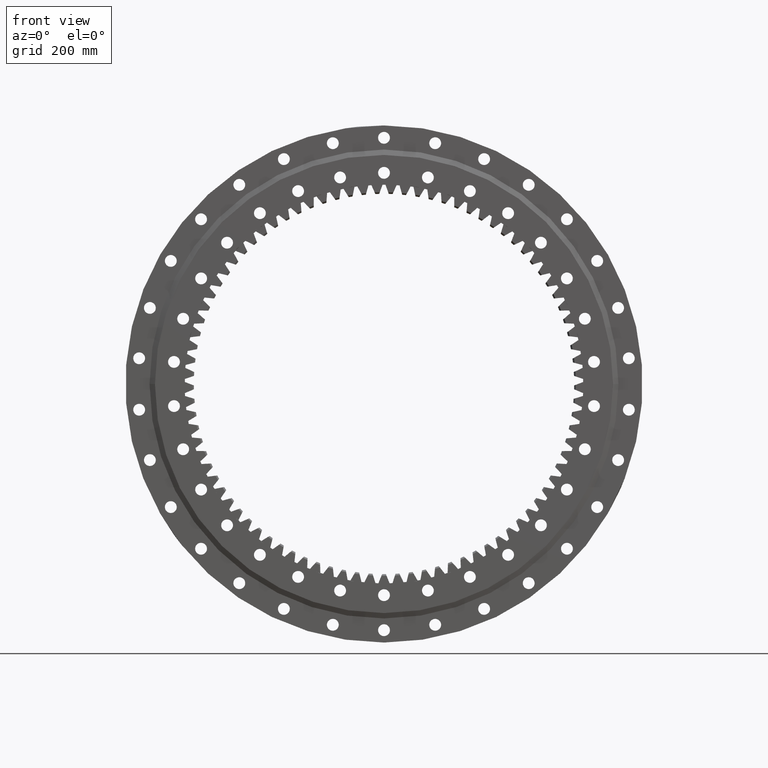
[diagram: clean part render]
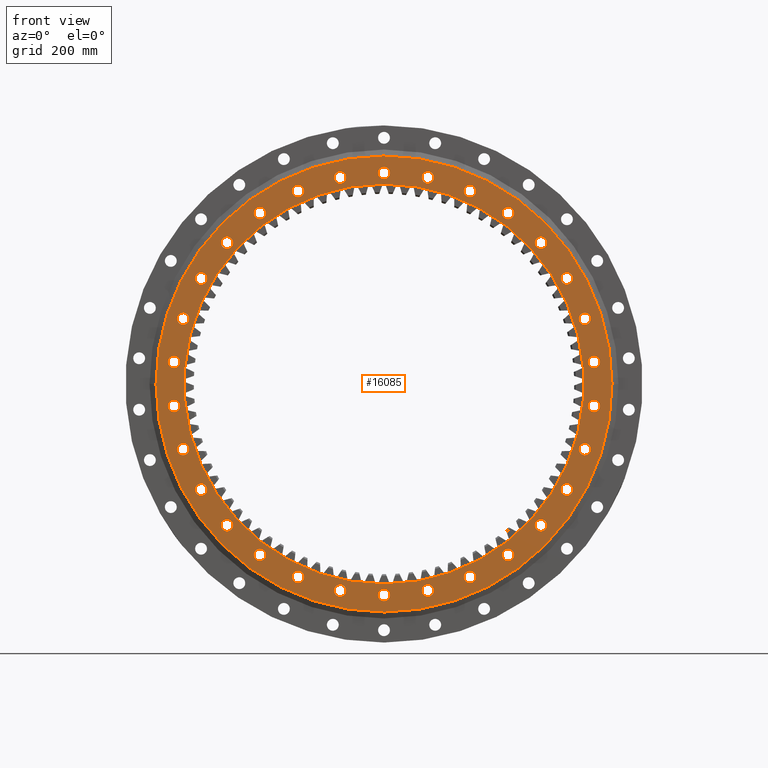
[diagram: same view with one face highlighted and labeled with its STEP entity id]
A machine part, front view. The second image highlights one B-rep face of the part: STEP entity #16085.
In plain terms, the highlighted planar face has unit normal (0, 1, -0).
Its self-contained STEP definition (entity closure, byte-faithful):
#42 = DIRECTION ( 'NONE',  ( -7.914688832368751900E-017, -1.000000000000000000, 6.617654413443253200E-017 ) ) ;
#182 = EDGE_CURVE ( 'NONE', #19157, #21866, #11584, .T. ) ;
#252 = CARTESIAN_POINT ( 'NONE',  ( 230.4118188986453200, -37.49999999999997200, 328.1346617949824300 ) ) ;
#288 = CARTESIAN_POINT ( 'NONE',  ( -81.50138280055892900, -37.49999999999998600, -383.4338594876524000 ) ) ;
#346 = FACE_BOUND ( 'NONE', #6698, .T. ) ;
#387 = EDGE_CURVE ( 'NONE', #7095, #25311, #18420, .T. ) ;
#444 = CIRCLE ( 'NONE', #19540, 10.99999999999997700 ) ;
#638 = CARTESIAN_POINT ( 'NONE',  ( 389.8525829843636600, -37.50000000000000000, -29.97515760091599200 ) ) ;
#661 = ORIENTED_EDGE ( 'NONE', *, *, #25674, .T. ) ;
#663 = CIRCLE ( 'NONE', #22200, 10.99999999999997900 ) ;
#708 = CARTESIAN_POINT ( 'NONE',  ( 81.50138280055632800, -37.49999999999995000, 383.4338594876529700 ) ) ;
#771 = EDGE_CURVE ( 'NONE', #816, #19096, #5057, .T. ) ;
#811 = ORIENTED_EDGE ( 'NONE', *, *, #23841, .T. ) ;
#816 = VERTEX_POINT ( 'NONE', #18573 ) ;
#901 = CARTESIAN_POINT ( 'NONE',  ( 291.3127715871352700, -37.49999999999996400, 262.2991976926761000 ) ) ;
#969 = FACE_BOUND ( 'NONE', #7936, .T. ) ;
#990 = CARTESIAN_POINT ( 'NONE',  ( -372.8141543877007400, -37.49999999999992900, 121.1346617949779400 ) ) ;
#1037 = CARTESIAN_POINT ( 'NONE',  ( 339.4819582834975900, -37.49999999999997900, 185.0000000000041200 ) ) ;
#1100 = EDGE_CURVE ( 'NONE', #16632, #5794, #1576, .T. ) ;
#1105 = EDGE_LOOP ( 'NONE', ( #21641, #10911 ) ) ;
#1153 = CIRCLE ( 'NONE', #15257, 423.2499999999999400 ) ;
#1392 = EDGE_LOOP ( 'NONE', ( #9373, #19290 ) ) ;
#1450 = CARTESIAN_POINT ( 'NONE',  ( -5.642730522889870800E-012, -37.49999999999994300, 381.0000000000000600 ) ) ;
#1456 = VERTEX_POINT ( 'NONE', #12157 ) ;
#1515 = DIRECTION ( 'NONE',  ( 0.9510565162951518700, 0.0000000000000000000, -0.3090169943749524500 ) ) ;
#1526 = CARTESIAN_POINT ( 'NONE',  ( 389.8525829843627500, -37.49999999999999300, 40.97515760092456100 ) ) ;
#1576 = CIRCLE ( 'NONE', #2342, 10.99999999999997500 ) ;
#1578 = FACE_BOUND ( 'NONE', #20775, .T. ) ;
#1590 = DIRECTION ( 'NONE',  ( 5.551115123123625700E-017, 0.0000000000000000000, 1.000000000000000000 ) ) ;
#1608 = VERTEX_POINT ( 'NONE', #2346 ) ;
#1845 = CARTESIAN_POINT ( 'NONE',  ( 339.4819582835019700, -37.50000000000001400, -184.9999999999967600 ) ) ;
#1950 = DIRECTION ( 'NONE',  ( -0.4067366430757881100, 0.0000000000000000000, 0.9135454576426063100 ) ) ;
#1957 = DIRECTION ( 'NONE',  ( -7.914688832368751900E-017, -1.000000000000000000, 6.617654413443253200E-017 ) ) ;
#1987 = ORIENTED_EDGE ( 'NONE', *, *, #387, .F. ) ;
#2026 = EDGE_LOOP ( 'NONE', ( #22293, #20347 ) ) ;
#2078 = ORIENTED_EDGE ( 'NONE', *, *, #7722, .F. ) ;
#2149 = CARTESIAN_POINT ( 'NONE',  ( -389.8525829843629800, -37.49999999999994300, -51.97515760092189700 ) ) ;
#2217 = FACE_BOUND ( 'NONE', #25259, .T. ) ;
#2248 = VERTEX_POINT ( 'NONE', #12774 ) ;
#2277 = DIRECTION ( 'NONE',  ( -0.2079116908177672800, 0.0000000000000000000, -0.9781476007338040200 ) ) ;
#2335 = CIRCLE ( 'NONE', #20297, 10.99999999999998000 ) ;
#2342 = AXIS2_PLACEMENT_3D ( 'NONE', #7269, #3453, #17328 ) ;
#2346 = CARTESIAN_POINT ( 'NONE',  ( -372.8141543876996000, -37.49999999999995000, -132.1346617949811600 ) ) ;
#2348 = DIRECTION ( 'NONE',  ( 0.7431448254773925800, 0.0000000000000000000, -0.6691306063588601200 ) ) ;
#2491 = DIRECTION ( 'NONE',  ( -7.914688832368751900E-017, -1.000000000000000000, 6.617654413443253200E-017 ) ) ;
#2582 = DIRECTION ( 'NONE',  ( -7.914688832368751900E-017, -1.000000000000000000, 6.617654413443253200E-017 ) ) ;
#2662 = EDGE_LOOP ( 'NONE', ( #15701, #24950 ) ) ;
#2684 = ORIENTED_EDGE ( 'NONE', *, *, #11899, .F. ) ;
#2703 = CARTESIAN_POINT ( 'NONE',  ( -339.4819582835005500, -37.49999999999992200, 195.9999999999990900 ) ) ;
#2716 = DIRECTION ( 'NONE',  ( 0.2079116908177589800, 0.0000000000000000000, 0.9781476007338056900 ) ) ;
#2734 = DIRECTION ( 'NONE',  ( -0.9945218953682722900, 0.0000000000000000000, 0.1045284632676639200 ) ) ;
#2864 = CARTESIAN_POINT ( 'NONE',  ( 2.900087676340490100E-012, -37.49999999999999300, -392.0000000000000000 ) ) ;
#2880 = CARTESIAN_POINT ( 'NONE',  ( 372.8141543877014800, -37.50000000000000700, -110.1346617949756000 ) ) ;
#2945 = DIRECTION ( 'NONE',  ( -5.551115123125783900E-017, -7.481287227932321400E-017, -1.000000000000000000 ) ) ;
#2985 = EDGE_LOOP ( 'NONE', ( #7611, #13466 ) ) ;
#3042 = CARTESIAN_POINT ( 'NONE',  ( -339.4819582835005500, -37.49999999999992200, 206.9999999999990600 ) ) ;
#3046 = CARTESIAN_POINT ( 'NONE',  ( -230.4118188986475400, -37.49999999999996400, -317.1346617949808400 ) ) ;
#3054 = AXIS2_PLACEMENT_3D ( 'NONE', #25301, #13416, #1515 ) ;
#3080 = ORIENTED_EDGE ( 'NONE', *, *, #19168, .F. ) ;
#3085 = AXIS2_PLACEMENT_3D ( 'NONE', #21630, #9741, #23649 ) ;
#3163 = CARTESIAN_POINT ( 'NONE',  ( 159.4407640857166900, -37.50000000000000700, -347.1098193958982800 ) ) ;
#3195 = EDGE_CURVE ( 'NONE', #22843, #24779, #24084, .T. ) ;
#3196 = AXIS2_PLACEMENT_3D ( 'NONE', #14400, #2491, #16382 ) ;
#3317 = CARTESIAN_POINT ( 'NONE',  ( 291.3127715871410100, -37.50000000000000700, -262.2991976926696800 ) ) ;
#3453 = DIRECTION ( 'NONE',  ( -7.914688832368751900E-017, -1.000000000000000000, 6.617654413443253200E-017 ) ) ;
#3464 = ORIENTED_EDGE ( 'NONE', *, *, #14143, .F. ) ;
#3468 = CIRCLE ( 'NONE', #22239, 10.99999999999997500 ) ;
#3470 = FACE_BOUND ( 'NONE', #2662, .T. ) ;
#3531 = DIRECTION ( 'NONE',  ( 0.9945218953682736200, 0.0000000000000000000, 0.1045284632676507900 ) ) ;
#3606 = DIRECTION ( 'NONE',  ( -7.914688832368751900E-017, -1.000000000000000000, 6.617654413443253200E-017 ) ) ;
#3649 = CIRCLE ( 'NONE', #18307, 10.99999999999999800 ) ;
#3684 = VERTEX_POINT ( 'NONE', #6448 ) ;
#3688 = VERTEX_POINT ( 'NONE', #16776 ) ;
#3822 = VERTEX_POINT ( 'NONE', #1845 ) ;
#3943 = AXIS2_PLACEMENT_3D ( 'NONE', #9127, #23020, #11135 ) ;
#3948 = CARTESIAN_POINT ( 'NONE',  ( 339.4819582834975900, -37.49999999999997900, 196.0000000000041200 ) ) ;
#3951 = CARTESIAN_POINT ( 'NONE',  ( -159.4407640857143900, -37.49999999999992900, 358.1098193958993600 ) ) ;
#4032 = DIRECTION ( 'NONE',  ( -7.914688832368751900E-017, -1.000000000000000000, 6.617654413443253200E-017 ) ) ;
#4087 = CARTESIAN_POINT ( 'NONE',  ( -159.4407640857143900, -37.49999999999992900, 347.1098193958994200 ) ) ;
#4091 = CIRCLE ( 'NONE', #3085, 10.99999999999995900 ) ;
#4150 = VERTEX_POINT ( 'NONE', #5363 ) ;
#4169 = ORIENTED_EDGE ( 'NONE', *, *, #24289, .F. ) ;
#4213 = CARTESIAN_POINT ( 'NONE',  ( -389.8525829843629800, -37.49999999999994300, -29.97515760092193200 ) ) ;
#4223 = DIRECTION ( 'NONE',  ( -7.914688832368751900E-017, -1.000000000000000000, 6.617654413443253200E-017 ) ) ;
#4254 = ORIENTED_EDGE ( 'NONE', *, *, #9830, .F. ) ;
#4272 = CARTESIAN_POINT ( 'NONE',  ( -230.4118188986501500, -37.49999999999992900, 317.1346617949788500 ) ) ;
#4323 = EDGE_CURVE ( 'NONE', #24322, #17646, #12585, .T. ) ;
#4330 = CARTESIAN_POINT ( 'NONE',  ( -81.50138280056226800, -37.49999999999993600, 383.4338594876516600 ) ) ;
#4336 = VERTEX_POINT ( 'NONE', #8570 ) ;
#4385 = EDGE_CURVE ( 'NONE', #6364, #7457, #6061, .T. ) ;
#4390 = CARTESIAN_POINT ( 'NONE',  ( -291.3127715871370400, -37.49999999999996400, -262.2991976926741700 ) ) ;
#4403 = FACE_BOUND ( 'NONE', #23584, .T. ) ;
#4404 = ORIENTED_EDGE ( 'NONE', *, *, #5306, .F. ) ;
#4407 = CARTESIAN_POINT ( 'NONE',  ( -81.50138280055892900, -37.49999999999998600, -372.4338594876524600 ) ) ;
#4447 = CARTESIAN_POINT ( 'NONE',  ( -372.8141543876996000, -37.49999999999995000, -121.1346617949811700 ) ) ;
#4470 = VERTEX_POINT ( 'NONE', #21446 ) ;
#4552 = EDGE_CURVE ( 'NONE', #11053, #19707, #12882, .T. ) ;
#4593 = AXIS2_PLACEMENT_3D ( 'NONE', #4950, #18823, #6923 ) ;
#4599 = CARTESIAN_POINT ( 'NONE',  ( 230.4118188986453200, -37.49999999999997200, 317.1346617949824300 ) ) ;
#4608 = DIRECTION ( 'NONE',  ( -7.914688832368751900E-017, -1.000000000000000000, 6.617654413443253200E-017 ) ) ;
#4677 = EDGE_CURVE ( 'NONE', #12948, #7034, #444, .T. ) ;
#4723 = DIRECTION ( 'NONE',  ( -0.8660254037844337100, 0.0000000000000000000, 0.5000000000000086600 ) ) ;
#4826 = DIRECTION ( 'NONE',  ( -7.914688832368751900E-017, -1.000000000000000000, 6.617654413443253200E-017 ) ) ;
#4895 = EDGE_CURVE ( 'NONE', #2248, #4336, #11303, .T. ) ;
#4900 = CIRCLE ( 'NONE', #18816, 10.99999999999996100 ) ;
#4950 = CARTESIAN_POINT ( 'NONE',  ( -389.8525829843629800, -37.49999999999994300, -40.97515760092191800 ) ) ;
#4969 = CARTESIAN_POINT ( 'NONE',  ( -2.968008312138279100E-015, -37.49999999999996400, 3.504269618579862700E-015 ) ) ;
#4974 = EDGE_CURVE ( 'NONE', #19707, #11053, #10060, .T. ) ;
#5031 = FACE_BOUND ( 'NONE', #8455, .T. ) ;
#5057 = CIRCLE ( 'NONE', #17987, 10.99999999999998900 ) ;
#5059 = DIRECTION ( 'NONE',  ( -7.914688832368751900E-017, -1.000000000000000000, 6.617654413443253200E-017 ) ) ;
#5060 = DIRECTION ( 'NONE',  ( -0.5877852522924800200, 0.0000000000000000000, -0.8090169943749423400 ) ) ;
#5075 = EDGE_CURVE ( 'NONE', #17259, #3684, #12861, .T. ) ;
#5078 = CIRCLE ( 'NONE', #20210, 10.99999999999999800 ) ;
#5102 = CARTESIAN_POINT ( 'NONE',  ( -5.642734439954239900E-012, -37.49999999999994300, 402.9999999999999400 ) ) ;
#5204 = EDGE_LOOP ( 'NONE', ( #15682, #6904 ) ) ;
#5232 = DIRECTION ( 'NONE',  ( 7.914688832368751900E-017, 1.000000000000000000, -6.617654413443253200E-017 ) ) ;
#5306 = EDGE_CURVE ( 'NONE', #7335, #15599, #13790, .T. ) ;
#5363 = CARTESIAN_POINT ( 'NONE',  ( 389.8525829843627500, -37.49999999999999300, 51.97515760092454000 ) ) ;
#5366 = CIRCLE ( 'NONE', #5935, 10.99999999999999300 ) ;
#5376 = CARTESIAN_POINT ( 'NONE',  ( 389.8525829843636600, -37.50000000000000000, -40.97515760091597800 ) ) ;
#5490 = AXIS2_PLACEMENT_3D ( 'NONE', #14495, #2582, #16475 ) ;
#5577 = CARTESIAN_POINT ( 'NONE',  ( -159.4407640857112700, -37.49999999999997900, -347.1098193959007300 ) ) ;
#5634 = CARTESIAN_POINT ( 'NONE',  ( -159.4407640857112700, -37.49999999999997900, -369.1098193959006700 ) ) ;
#5642 = FACE_BOUND ( 'NONE', #12249, .T. ) ;
#5656 = AXIS2_PLACEMENT_3D ( 'NONE', #19745, #7847, #21732 ) ;
#5716 = EDGE_LOOP ( 'NONE', ( #24106, #661 ) ) ;
#5726 = EDGE_CURVE ( 'NONE', #11041, #22179, #22773, .T. ) ;
#5729 = VERTEX_POINT ( 'NONE', #9092 ) ;
#5777 = CARTESIAN_POINT ( 'NONE',  ( -81.50138280055892900, -37.49999999999998600, -383.4338594876524000 ) ) ;
#5787 = ORIENTED_EDGE ( 'NONE', *, *, #6781, .F. ) ;
#5794 = VERTEX_POINT ( 'NONE', #5577 ) ;
#5800 = EDGE_CURVE ( 'NONE', #14459, #6392, #7548, .T. ) ;
#5827 = EDGE_CURVE ( 'NONE', #11426, #6340, #5078, .T. ) ;
#5831 = CARTESIAN_POINT ( 'NONE',  ( 2.903270572874554100E-012, -37.49999999999999300, -381.0000000000000600 ) ) ;
#5887 = VERTEX_POINT ( 'NONE', #252 ) ;
#5935 = AXIS2_PLACEMENT_3D ( 'NONE', #3317, #17200, #7307 ) ;
#5945 = EDGE_LOOP ( 'NONE', ( #7436, #5787 ) ) ;
#5948 = CIRCLE ( 'NONE', #6894, 10.99999999999997500 ) ;
#5949 = DIRECTION ( 'NONE',  ( 0.8660254037844393700, 0.0000000000000000000, 0.4999999999999987800 ) ) ;
#5966 = ORIENTED_EDGE ( 'NONE', *, *, #4974, .F. ) ;
#6009 = VERTEX_POINT ( 'NONE', #21548 ) ;
#6061 = CIRCLE ( 'NONE', #13377, 10.99999999999995400 ) ;
#6068 = EDGE_CURVE ( 'NONE', #4336, #2248, #5366, .T. ) ;
#6255 = DIRECTION ( 'NONE',  ( -0.5877852522924637000, 0.0000000000000000000, 0.8090169943749543300 ) ) ;
#6258 = FACE_BOUND ( 'NONE', #6855, .T. ) ;
#6281 = CARTESIAN_POINT ( 'NONE',  ( -372.8141543877007400, -37.49999999999992900, 110.1346617949779700 ) ) ;
#6314 = DIRECTION ( 'NONE',  ( -0.2079116908177469400, 0.0000000000000000000, 0.9781476007338082400 ) ) ;
#6340 = VERTEX_POINT ( 'NONE', #4087 ) ;
#6364 = VERTEX_POINT ( 'NONE', #20261 ) ;
#6368 = EDGE_CURVE ( 'NONE', #16248, #13263, #16843, .T. ) ;
#6373 = DIRECTION ( 'NONE',  ( -0.7431448254773999100, 0.0000000000000000000, -0.6691306063588520200 ) ) ;
#6392 = VERTEX_POINT ( 'NONE', #4407 ) ;
#6436 = DIRECTION ( 'NONE',  ( -0.9510565162951565300, 0.0000000000000000000, -0.3090169943749384600 ) ) ;
#6448 = CARTESIAN_POINT ( 'NONE',  ( 372.8141543876987500, -37.49999999999998600, 110.1346617949838100 ) ) ;
#6478 = CIRCLE ( 'NONE', #21336, 10.99999999999995400 ) ;
#6480 = EDGE_LOOP ( 'NONE', ( #14378, #22193 ) ) ;
#6492 = AXIS2_PLACEMENT_3D ( 'NONE', #6548, #20418, #8541 ) ;
#6547 = CIRCLE ( 'NONE', #4593, 11.00000000000000900 ) ;
#6548 = CARTESIAN_POINT ( 'NONE',  ( -372.8141543876996000, -37.49999999999995000, -121.1346617949811700 ) ) ;
#6577 = DIRECTION ( 'NONE',  ( 0.5877852522924726900, 0.0000000000000000000, 0.8090169943749477800 ) ) ;
#6583 = CIRCLE ( 'NONE', #16881, 10.99999999999998900 ) ;
#6590 = DIRECTION ( 'NONE',  ( -7.914688832368751900E-017, -1.000000000000000000, 6.617654413443253200E-017 ) ) ;
#6698 = EDGE_LOOP ( 'NONE', ( #21554, #4404 ) ) ;
#6738 = AXIS2_PLACEMENT_3D ( 'NONE', #1526, #15423, #3531 ) ;
#6781 = EDGE_CURVE ( 'NONE', #14345, #10984, #3468, .T. ) ;
#6792 = DIRECTION ( 'NONE',  ( 0.9510565162951518700, 0.0000000000000000000, -0.3090169943749524500 ) ) ;
#6817 = EDGE_CURVE ( 'NONE', #9780, #6009, #18696, .T. ) ;
#6850 = CARTESIAN_POINT ( 'NONE',  ( 230.4118188986523700, -37.50000000000000700, -328.1346617949772100 ) ) ;
#6855 = EDGE_LOOP ( 'NONE', ( #4254, #11077 ) ) ;
#6884 = FACE_BOUND ( 'NONE', #8532, .T. ) ;
#6894 = AXIS2_PLACEMENT_3D ( 'NONE', #9031, #22921, #11034 ) ;
#6904 = ORIENTED_EDGE ( 'NONE', *, *, #20466, .F. ) ;
#6910 = ORIENTED_EDGE ( 'NONE', *, *, #19960, .F. ) ;
#6923 = DIRECTION ( 'NONE',  ( -0.9945218953682744000, 0.0000000000000000000, -0.1045284632676434200 ) ) ;
#6930 = CARTESIAN_POINT ( 'NONE',  ( 1.782449601546759800E-014, -37.49999999999993600, 371.0000000000000000 ) ) ;
#6933 = VERTEX_POINT ( 'NONE', #24747 ) ;
#6949 = AXIS2_PLACEMENT_3D ( 'NONE', #20823, #8938, #22824 ) ;
#6986 = ORIENTED_EDGE ( 'NONE', *, *, #21777, .F. ) ;
#7030 = CARTESIAN_POINT ( 'NONE',  ( -230.4118188986501500, -37.49999999999992900, 328.1346617949788000 ) ) ;
#7034 = VERTEX_POINT ( 'NONE', #21426 ) ;
#7066 = ORIENTED_EDGE ( 'NONE', *, *, #17684, .F. ) ;
#7086 = CARTESIAN_POINT ( 'NONE',  ( -291.3127715871370400, -37.49999999999996400, -251.2991976926742300 ) ) ;
#7095 = VERTEX_POINT ( 'NONE', #23702 ) ;
#7137 = ORIENTED_EDGE ( 'NONE', *, *, #4552, .F. ) ;
#7192 = EDGE_CURVE ( 'NONE', #3684, #17259, #17057, .T. ) ;
#7269 = CARTESIAN_POINT ( 'NONE',  ( -159.4407640857112700, -37.49999999999997900, -358.1098193959006700 ) ) ;
#7307 = DIRECTION ( 'NONE',  ( 0.7431448254773925800, 0.0000000000000000000, -0.6691306063588601200 ) ) ;
#7335 = VERTEX_POINT ( 'NONE', #6850 ) ;
#7360 = DIRECTION ( 'NONE',  ( 0.9945218953682729600, 0.0000000000000000000, -0.1045284632676570400 ) ) ;
#7436 = ORIENTED_EDGE ( 'NONE', *, *, #12781, .F. ) ;
#7452 = CARTESIAN_POINT ( 'NONE',  ( 339.4819582834975900, -37.49999999999997900, 196.0000000000041200 ) ) ;
#7457 = VERTEX_POINT ( 'NONE', #5831 ) ;
#7517 = CIRCLE ( 'NONE', #24026, 10.99999999999997700 ) ;
#7548 = CIRCLE ( 'NONE', #16226, 10.99999999999996600 ) ;
#7604 = CIRCLE ( 'NONE', #19317, 11.00000000000000400 ) ;
#7611 = ORIENTED_EDGE ( 'NONE', *, *, #17336, .F. ) ;
#7662 = DIRECTION ( 'NONE',  ( -7.914688832368751900E-017, -1.000000000000000000, 6.617654413443253200E-017 ) ) ;
#7707 = CIRCLE ( 'NONE', #12239, 10.99999999999995900 ) ;
#7710 = CIRCLE ( 'NONE', #5656, 10.99999999999998600 ) ;
#7721 = EDGE_LOOP ( 'NONE', ( #5966, #7137 ) ) ;
#7722 = EDGE_CURVE ( 'NONE', #7457, #6364, #6478, .T. ) ;
#7732 = EDGE_CURVE ( 'NONE', #19539, #25798, #11753, .T. ) ;
#7738 = DIRECTION ( 'NONE',  ( -7.914688832368751900E-017, -1.000000000000000000, 6.617654413443253200E-017 ) ) ;
#7801 = VERTEX_POINT ( 'NONE', #13091 ) ;
#7824 = CARTESIAN_POINT ( 'NONE',  ( 230.4118188986523700, -37.50000000000000700, -306.1346617949772600 ) ) ;
#7826 = AXIS2_PLACEMENT_3D ( 'NONE', #10599, #6590, #20467 ) ;
#7845 = CARTESIAN_POINT ( 'NONE',  ( 372.8141543876987500, -37.49999999999998600, 132.1346617949837700 ) ) ;
#7847 = DIRECTION ( 'NONE',  ( -7.914688832368751900E-017, -1.000000000000000000, 6.617654413443253200E-017 ) ) ;
#7852 = CARTESIAN_POINT ( 'NONE',  ( -389.8525829843629800, -37.49999999999994300, -40.97515760092191800 ) ) ;
#7936 = EDGE_LOOP ( 'NONE', ( #23896, #11784 ) ) ;
#7945 = DIRECTION ( 'NONE',  ( -7.914688832368751900E-017, -1.000000000000000000, 6.617654413443251900E-017 ) ) ;
#8047 = VERTEX_POINT ( 'NONE', #16461 ) ;
#8100 = DIRECTION ( 'NONE',  ( -7.914688832368753200E-017, -1.000000000000000000, 6.617654413443253200E-017 ) ) ;
#8103 = EDGE_CURVE ( 'NONE', #17646, #24322, #20741, .T. ) ;
#8217 = EDGE_CURVE ( 'NONE', #3688, #19708, #13607, .T. ) ;
#8249 = AXIS2_PLACEMENT_3D ( 'NONE', #11099, #24978, #13089 ) ;
#8260 = EDGE_CURVE ( 'NONE', #15263, #11106, #22912, .T. ) ;
#8339 = ORIENTED_EDGE ( 'NONE', *, *, #23480, .F. ) ;
#8397 = AXIS2_PLACEMENT_3D ( 'NONE', #12383, #24265, #10397 ) ;
#8440 = DIRECTION ( 'NONE',  ( -7.914688832368751900E-017, -1.000000000000000000, 6.617654413443253200E-017 ) ) ;
#8455 = EDGE_LOOP ( 'NONE', ( #4169, #15986 ) ) ;
#8470 = ORIENTED_EDGE ( 'NONE', *, *, #5075, .F. ) ;
#8532 = EDGE_LOOP ( 'NONE', ( #13272, #22498 ) ) ;
#8541 = DIRECTION ( 'NONE',  ( -0.9510565162951565300, 0.0000000000000000000, -0.3090169943749384600 ) ) ;
#8569 = ORIENTED_EDGE ( 'NONE', *, *, #10926, .F. ) ;
#8570 = CARTESIAN_POINT ( 'NONE',  ( 291.3127715871410100, -37.50000000000000700, -251.2991976926697400 ) ) ;
#8665 = ORIENTED_EDGE ( 'NONE', *, *, #18285, .F. ) ;
#8701 = DIRECTION ( 'NONE',  ( 0.9510565162951547500, 0.0000000000000000000, 0.3090169943749441800 ) ) ;
#8717 = AXIS2_PLACEMENT_3D ( 'NONE', #24384, #11554, #13559 ) ;
#8746 = CARTESIAN_POINT ( 'NONE',  ( -230.4118188986501500, -37.49999999999992900, 306.1346617949789100 ) ) ;
#8755 = CIRCLE ( 'NONE', #9555, 10.99999999999997000 ) ;
#8782 = CARTESIAN_POINT ( 'NONE',  ( 372.8141543877014800, -37.50000000000000700, -121.1346617949755700 ) ) ;
#8938 = DIRECTION ( 'NONE',  ( -7.914688832368751900E-017, -1.000000000000000000, 6.617654413443253200E-017 ) ) ;
#8946 = ORIENTED_EDGE ( 'NONE', *, *, #10398, .F. ) ;
#9031 = CARTESIAN_POINT ( 'NONE',  ( -159.4407640857112700, -37.49999999999997900, -358.1098193959006700 ) ) ;
#9038 = FACE_OUTER_BOUND ( 'NONE', #5716, .T. ) ;
#9092 = CARTESIAN_POINT ( 'NONE',  ( 159.4407640857088800, -37.49999999999995700, 369.1098193959016400 ) ) ;
#9127 = CARTESIAN_POINT ( 'NONE',  ( 389.8525829843627500, -37.49999999999999300, 40.97515760092456100 ) ) ;
#9258 = VERTEX_POINT ( 'NONE', #18884 ) ;
#9338 = VERTEX_POINT ( 'NONE', #11306 ) ;
#9340 = CARTESIAN_POINT ( 'NONE',  ( 291.3127715871352700, -37.49999999999996400, 273.2991976926761000 ) ) ;
#9347 = CARTESIAN_POINT ( 'NONE',  ( 389.8525829843636600, -37.50000000000000000, -40.97515760091597800 ) ) ;
#9373 = ORIENTED_EDGE ( 'NONE', *, *, #4323, .F. ) ;
#9385 = CIRCLE ( 'NONE', #3054, 10.99999999999996300 ) ;
#9426 = ORIENTED_EDGE ( 'NONE', *, *, #7192, .F. ) ;
#9430 = DIRECTION ( 'NONE',  ( 0.8660254037844393700, 0.0000000000000000000, 0.4999999999999987800 ) ) ;
#9461 = CIRCLE ( 'NONE', #25376, 10.99999999999999100 ) ;
#9496 = DIRECTION ( 'NONE',  ( 0.2079116908177529600, 0.0000000000000000000, -0.9781476007338069100 ) ) ;
#9510 = CARTESIAN_POINT ( 'NONE',  ( 2.052708644649159900E-014, -37.49999999999993600, 423.2499999999999400 ) ) ;
#9523 = DIRECTION ( 'NONE',  ( -7.914688832368751900E-017, -1.000000000000000000, 6.617654413443253200E-017 ) ) ;
#9525 = CIRCLE ( 'NONE', #19942, 10.99999999999997500 ) ;
#9555 = AXIS2_PLACEMENT_3D ( 'NONE', #9347, #23261, #11356 ) ;
#9618 = DIRECTION ( 'NONE',  ( -7.914688832368751900E-017, -1.000000000000000000, 6.617654413443253200E-017 ) ) ;
#9651 = FACE_BOUND ( 'NONE', #1392, .T. ) ;
#9717 = AXIS2_PLACEMENT_3D ( 'NONE', #5376, #19255, #7360 ) ;
#9728 = EDGE_CURVE ( 'NONE', #20685, #9258, #22543, .T. ) ;
#9741 = DIRECTION ( 'NONE',  ( -7.914688832368753200E-017, -1.000000000000000000, 6.617654413443253200E-017 ) ) ;
#9780 = VERTEX_POINT ( 'NONE', #2880 ) ;
#9830 = EDGE_CURVE ( 'NONE', #7801, #1456, #9461, .T. ) ;
#9840 = VERTEX_POINT ( 'NONE', #1037 ) ;
#9929 = CARTESIAN_POINT ( 'NONE',  ( -7.810039029607876700E-014, -37.49999999999999300, -423.2499999999999400 ) ) ;
#9969 = ORIENTED_EDGE ( 'NONE', *, *, #182, .F. ) ;
#10060 = CIRCLE ( 'NONE', #20364, 10.99999999999995400 ) ;
#10079 = DIRECTION ( 'NONE',  ( -7.914688832368751900E-017, -1.000000000000000000, 6.617654413443251900E-017 ) ) ;
#10083 = ORIENTED_EDGE ( 'NONE', *, *, #10155, .F. ) ;
#10093 = ORIENTED_EDGE ( 'NONE', *, *, #9728, .F. ) ;
#10149 = EDGE_LOOP ( 'NONE', ( #24296, #19435 ) ) ;
#10155 = EDGE_CURVE ( 'NONE', #19717, #6933, #20368, .T. ) ;
#10198 = AXIS2_PLACEMENT_3D ( 'NONE', #4599, #18477, #6577 ) ;
#10228 = CIRCLE ( 'NONE', #21909, 10.99999999999995600 ) ;
#10230 = VERTEX_POINT ( 'NONE', #638 ) ;
#10253 = EDGE_LOOP ( 'NONE', ( #10093, #12378 ) ) ;
#10303 = FACE_BOUND ( 'NONE', #10149, .T. ) ;
#10397 = DIRECTION ( 'NONE',  ( 0.7431448254773951300, 0.0000000000000000000, 0.6691306063588573500 ) ) ;
#10398 = EDGE_CURVE ( 'NONE', #11984, #4150, #11982, .T. ) ;
#10444 = DIRECTION ( 'NONE',  ( -0.2079116908177469400, 0.0000000000000000000, 0.9781476007338082400 ) ) ;
#10476 = EDGE_LOOP ( 'NONE', ( #2684, #12220 ) ) ;
#10599 = CARTESIAN_POINT ( 'NONE',  ( -339.4819582834989000, -37.49999999999995700, -196.0000000000017300 ) ) ;
#10646 = DIRECTION ( 'NONE',  ( -7.914688832368751900E-017, -1.000000000000000000, 6.617654413443253200E-017 ) ) ;
#10725 = EDGE_CURVE ( 'NONE', #21866, #19157, #21574, .T. ) ;
#10740 = AXIS2_PLACEMENT_3D ( 'NONE', #901, #9618, #20724 ) ;
#10911 = ORIENTED_EDGE ( 'NONE', *, *, #25026, .F. ) ;
#10925 = FACE_BOUND ( 'NONE', #19210, .T. ) ;
#10926 = EDGE_CURVE ( 'NONE', #25311, #7095, #23305, .T. ) ;
#10977 = AXIS2_PLACEMENT_3D ( 'NONE', #11844, #25739, #13861 ) ;
#10984 = VERTEX_POINT ( 'NONE', #20985 ) ;
#11034 = DIRECTION ( 'NONE',  ( -0.4067366430758066500, 0.0000000000000000000, -0.9135454576425979800 ) ) ;
#11041 = VERTEX_POINT ( 'NONE', #11350 ) ;
#11053 = VERTEX_POINT ( 'NONE', #1450 ) ;
#11063 = AXIS2_PLACEMENT_3D ( 'NONE', #21962, #10079, #2348 ) ;
#11077 = ORIENTED_EDGE ( 'NONE', *, *, #21074, .F. ) ;
#11099 = CARTESIAN_POINT ( 'NONE',  ( -2.968008312138279100E-015, -37.49999999999996400, 1.635436641461305900E-015 ) ) ;
#11106 = VERTEX_POINT ( 'NONE', #11613 ) ;
#11109 = DIRECTION ( 'NONE',  ( -7.914688832368751900E-017, -1.000000000000000000, 6.617654413443253200E-017 ) ) ;
#11135 = DIRECTION ( 'NONE',  ( 0.9945218953682736200, 0.0000000000000000000, 0.1045284632676507900 ) ) ;
#11143 = CARTESIAN_POINT ( 'NONE',  ( 2.900087676340490100E-012, -37.49999999999999300, -392.0000000000000000 ) ) ;
#11162 = CARTESIAN_POINT ( 'NONE',  ( 389.8525829843636600, -37.50000000000000000, -51.97515760091595600 ) ) ;
#11303 = CIRCLE ( 'NONE', #11063, 10.99999999999999300 ) ;
#11306 = CARTESIAN_POINT ( 'NONE',  ( 339.4819582835019700, -37.50000000000001400, -206.9999999999967000 ) ) ;
#11350 = CARTESIAN_POINT ( 'NONE',  ( 2.052708644649159900E-014, -37.49999999999993600, 423.2499999999999400 ) ) ;
#11356 = DIRECTION ( 'NONE',  ( 0.9945218953682729600, 0.0000000000000000000, -0.1045284632676570400 ) ) ;
#11426 = VERTEX_POINT ( 'NONE', #20953 ) ;
#11431 = AXIS2_PLACEMENT_3D ( 'NONE', #4272, #18148, #6255 ) ;
#11450 = AXIS2_PLACEMENT_3D ( 'NONE', #288, #14200, #2277 ) ;
#11539 = FACE_BOUND ( 'NONE', #13692, .T. ) ;
#11554 = DIRECTION ( 'NONE',  ( -7.914688832368751900E-017, -1.000000000000000000, 6.617654413443253200E-017 ) ) ;
#11584 = CIRCLE ( 'NONE', #12310, 10.99999999999996600 ) ;
#11613 = CARTESIAN_POINT ( 'NONE',  ( -372.8141543877007400, -37.49999999999992900, 132.1346617949779400 ) ) ;
#11689 = EDGE_CURVE ( 'NONE', #15599, #7335, #10228, .T. ) ;
#11690 = ORIENTED_EDGE ( 'NONE', *, *, #6368, .F. ) ;
#11753 = CIRCLE ( 'NONE', #22689, 371.0000000000000000 ) ;
#11762 = DIRECTION ( 'NONE',  ( -0.2079116908177672800, 0.0000000000000000000, -0.9781476007338040200 ) ) ;
#11784 = ORIENTED_EDGE ( 'NONE', *, *, #1100, .F. ) ;
#11844 = CARTESIAN_POINT ( 'NONE',  ( -291.3127715871392000, -37.49999999999992200, 262.2991976926716700 ) ) ;
#11899 = EDGE_CURVE ( 'NONE', #19708, #3688, #16430, .T. ) ;
#11982 = CIRCLE ( 'NONE', #3943, 10.99999999999996300 ) ;
#11984 = VERTEX_POINT ( 'NONE', #21184 ) ;
#12009 = CIRCLE ( 'NONE', #13314, 10.99999999999998800 ) ;
#12149 = FACE_BOUND ( 'NONE', #6480, .T. ) ;
#12157 = CARTESIAN_POINT ( 'NONE',  ( -230.4118188986475400, -37.49999999999996400, -328.1346617949807900 ) ) ;
#12220 = ORIENTED_EDGE ( 'NONE', *, *, #8217, .F. ) ;
#12239 = AXIS2_PLACEMENT_3D ( 'NONE', #19985, #8100, #21976 ) ;
#12249 = EDGE_LOOP ( 'NONE', ( #8665, #12532 ) ) ;
#12310 = AXIS2_PLACEMENT_3D ( 'NONE', #17904, #23719, #21819 ) ;
#12378 = ORIENTED_EDGE ( 'NONE', *, *, #13160, .F. ) ;
#12383 = CARTESIAN_POINT ( 'NONE',  ( 291.3127715871352700, -37.49999999999996400, 262.2991976926761000 ) ) ;
#12532 = ORIENTED_EDGE ( 'NONE', *, *, #3195, .F. ) ;
#12585 = CIRCLE ( 'NONE', #10740, 10.99999999999995600 ) ;
#12694 = CARTESIAN_POINT ( 'NONE',  ( 372.8141543876987500, -37.49999999999998600, 121.1346617949837800 ) ) ;
#12774 = CARTESIAN_POINT ( 'NONE',  ( 291.3127715871410100, -37.50000000000000700, -273.2991976926696200 ) ) ;
#12781 = EDGE_CURVE ( 'NONE', #10984, #14345, #9525, .T. ) ;
#12861 = CIRCLE ( 'NONE', #24361, 10.99999999999998800 ) ;
#12882 = CIRCLE ( 'NONE', #24024, 10.99999999999995400 ) ;
#12896 = DIRECTION ( 'NONE',  ( -7.914688832368751900E-017, -1.000000000000000000, 6.617654413443253200E-017 ) ) ;
#12948 = VERTEX_POINT ( 'NONE', #13068 ) ;
#13013 = CIRCLE ( 'NONE', #24256, 10.99999999999998900 ) ;
#13068 = CARTESIAN_POINT ( 'NONE',  ( -389.8525829843633800, -37.49999999999993600, 51.97515760091850000 ) ) ;
#13089 = DIRECTION ( 'NONE',  ( 5.551115123125783900E-017, 6.557726075754026600E-017, 1.000000000000000000 ) ) ;
#13091 = CARTESIAN_POINT ( 'NONE',  ( -230.4118188986475400, -37.49999999999996400, -306.1346617949809000 ) ) ;
#13160 = EDGE_CURVE ( 'NONE', #9258, #20685, #7710, .T. ) ;
#13164 = EDGE_CURVE ( 'NONE', #24272, #16791, #22932, .T. ) ;
#13263 = VERTEX_POINT ( 'NONE', #4213 ) ;
#13272 = ORIENTED_EDGE ( 'NONE', *, *, #4677, .F. ) ;
#13314 = AXIS2_PLACEMENT_3D ( 'NONE', #22995, #11109, #24990 ) ;
#13350 = EDGE_CURVE ( 'NONE', #1608, #8047, #14556, .T. ) ;
#13377 = AXIS2_PLACEMENT_3D ( 'NONE', #11143, #15495, #25031 ) ;
#13389 = AXIS2_PLACEMENT_3D ( 'NONE', #17107, #5232, #19111 ) ;
#13416 = DIRECTION ( 'NONE',  ( -7.914688832368751900E-017, -1.000000000000000000, 6.617654413443253200E-017 ) ) ;
#13466 = ORIENTED_EDGE ( 'NONE', *, *, #5800, .F. ) ;
#13533 = DIRECTION ( 'NONE',  ( -5.551115123125783900E-017, -6.617654413443253200E-017, -1.000000000000000000 ) ) ;
#13559 = DIRECTION ( 'NONE',  ( 0.4067366430757942700, 0.0000000000000000000, -0.9135454576426036400 ) ) ;
#13575 = AXIS2_PLACEMENT_3D ( 'NONE', #7452, #21323, #9430 ) ;
#13607 = CIRCLE ( 'NONE', #21687, 11.00000000000000400 ) ;
#13692 = EDGE_LOOP ( 'NONE', ( #10083, #3464 ) ) ;
#13704 = DIRECTION ( 'NONE',  ( -0.9945218953682744000, 0.0000000000000000000, -0.1045284632676434200 ) ) ;
#13761 = AXIS2_PLACEMENT_3D ( 'NONE', #4390, #18275, #6373 ) ;
#13790 = CIRCLE ( 'NONE', #19882, 10.99999999999995600 ) ;
#13861 = DIRECTION ( 'NONE',  ( -0.7431448254773878000, 0.0000000000000000000, 0.6691306063588654500 ) ) ;
#13872 = DIRECTION ( 'NONE',  ( -7.914688832368751900E-017, -1.000000000000000000, 6.617654413443251900E-017 ) ) ;
#13975 = CARTESIAN_POINT ( 'NONE',  ( 81.50138280055632800, -37.49999999999995000, 383.4338594876529700 ) ) ;
#13979 = CIRCLE ( 'NONE', #11450, 10.99999999999996600 ) ;
#14058 = VERTEX_POINT ( 'NONE', #14951 ) ;
#14143 = EDGE_CURVE ( 'NONE', #6933, #19717, #4900, .T. ) ;
#14144 = CARTESIAN_POINT ( 'NONE',  ( -6.879917444649252500E-014, -37.49999999999999300, -371.0000000000000000 ) ) ;
#14155 = ORIENTED_EDGE ( 'NONE', *, *, #16038, .F. ) ;
#14200 = DIRECTION ( 'NONE',  ( -7.914688832368751900E-017, -1.000000000000000000, 6.617654413443253200E-017 ) ) ;
#14228 = CARTESIAN_POINT ( 'NONE',  ( -291.3127715871392000, -37.49999999999992200, 273.2991976926716100 ) ) ;
#14340 = FACE_BOUND ( 'NONE', #7721, .T. ) ;
#14345 = VERTEX_POINT ( 'NONE', #16136 ) ;
#14378 = ORIENTED_EDGE ( 'NONE', *, *, #15049, .F. ) ;
#14395 = CIRCLE ( 'NONE', #10198, 10.99999999999998800 ) ;
#14400 = CARTESIAN_POINT ( 'NONE',  ( -230.4118188986475400, -37.49999999999996400, -317.1346617949808400 ) ) ;
#14421 = CIRCLE ( 'NONE', #3196, 10.99999999999999100 ) ;
#14459 = VERTEX_POINT ( 'NONE', #24457 ) ;
#14495 = CARTESIAN_POINT ( 'NONE',  ( 159.4407640857166900, -37.50000000000000700, -358.1098193958982300 ) ) ;
#14556 = CIRCLE ( 'NONE', #6492, 10.99999999999996600 ) ;
#14624 = DIRECTION ( 'NONE',  ( -7.914688832368751900E-017, -1.000000000000000000, 6.617654413443253200E-017 ) ) ;
#14639 = DIRECTION ( 'NONE',  ( -7.914688832368751900E-017, -1.000000000000000000, 6.617654413443253200E-017 ) ) ;
#14699 = EDGE_CURVE ( 'NONE', #4150, #11984, #22438, .T. ) ;
#14755 = AXIS2_PLACEMENT_3D ( 'NONE', #2703, #16591, #4723 ) ;
#14760 = AXIS2_PLACEMENT_3D ( 'NONE', #7852, #1957, #13704 ) ;
#14765 = DIRECTION ( 'NONE',  ( -7.914688832368751900E-017, -1.000000000000000000, 6.617654413443253200E-017 ) ) ;
#14889 = EDGE_CURVE ( 'NONE', #7034, #12948, #7517, .T. ) ;
#14951 = CARTESIAN_POINT ( 'NONE',  ( 159.4407640857088800, -37.49999999999995700, 347.1098193959017500 ) ) ;
#14959 = FACE_BOUND ( 'NONE', #15649, .T. ) ;
#15027 = EDGE_CURVE ( 'NONE', #19096, #816, #6583, .T. ) ;
#15049 = EDGE_CURVE ( 'NONE', #11106, #15263, #663, .T. ) ;
#15102 = EDGE_CURVE ( 'NONE', #3822, #9338, #4091, .T. ) ;
#15174 = CARTESIAN_POINT ( 'NONE',  ( -291.3127715871392000, -37.49999999999992200, 251.2991976926717300 ) ) ;
#15241 = DIRECTION ( 'NONE',  ( -7.914688832368751900E-017, -1.000000000000000000, 6.617654413443253200E-017 ) ) ;
#15257 = AXIS2_PLACEMENT_3D ( 'NONE', #16481, #4608, #18490 ) ;
#15263 = VERTEX_POINT ( 'NONE', #6281 ) ;
#15376 = ORIENTED_EDGE ( 'NONE', *, *, #10725, .F. ) ;
#15423 = DIRECTION ( 'NONE',  ( -7.914688832368753200E-017, -1.000000000000000000, 6.617654413443253200E-017 ) ) ;
#15438 = DIRECTION ( 'NONE',  ( 7.914688832368751900E-017, 1.000000000000000000, -6.617654413443253200E-017 ) ) ;
#15491 = CARTESIAN_POINT ( 'NONE',  ( -372.8141543877007400, -37.49999999999992900, 121.1346617949779400 ) ) ;
#15495 = DIRECTION ( 'NONE',  ( -7.914688832368751900E-017, -1.000000000000000000, 6.617654413443253200E-017 ) ) ;
#15572 = FACE_BOUND ( 'NONE', #1105, .T. ) ;
#15599 = VERTEX_POINT ( 'NONE', #7824 ) ;
#15649 = EDGE_LOOP ( 'NONE', ( #14155, #6910 ) ) ;
#15682 = ORIENTED_EDGE ( 'NONE', *, *, #20190, .F. ) ;
#15701 = ORIENTED_EDGE ( 'NONE', *, *, #5827, .F. ) ;
#15924 = CARTESIAN_POINT ( 'NONE',  ( 230.4118188986523700, -37.50000000000000700, -317.1346617949772600 ) ) ;
#15981 = DIRECTION ( 'NONE',  ( -0.4067366430757881100, 0.0000000000000000000, 0.9135454576426063100 ) ) ;
#15986 = ORIENTED_EDGE ( 'NONE', *, *, #16016, .F. ) ;
#16016 = EDGE_CURVE ( 'NONE', #17083, #10230, #8755, .T. ) ;
#16038 = EDGE_CURVE ( 'NONE', #18612, #9840, #23970, .T. ) ;
#16085 = ADVANCED_FACE ( 'NONE', ( #2217, #23349, #3470, #18063, #22722, #17436, #12149, #6884, #1578, #22090, #16822, #11539, #6258, #969, #21455, #16193, #10925, #5642, #346, #20848, #15572, #10303, #5031, #25513, #20219, #14959, #9651, #4403, #24886, #19603, #14340, #9038 ), #25422, .F. ) ;
#16110 = CARTESIAN_POINT ( 'NONE',  ( -389.8525829843633800, -37.49999999999993600, 40.97515760091852100 ) ) ;
#16136 = CARTESIAN_POINT ( 'NONE',  ( -81.50138280056226800, -37.49999999999993600, 372.4338594876517200 ) ) ;
#16164 = CARTESIAN_POINT ( 'NONE',  ( 291.3127715871352700, -37.49999999999996400, 251.2991976926761600 ) ) ;
#16193 = FACE_BOUND ( 'NONE', #24551, .T. ) ;
#16226 = AXIS2_PLACEMENT_3D ( 'NONE', #5777, #19654, #11762 ) ;
#16248 = VERTEX_POINT ( 'NONE', #2149 ) ;
#16382 = DIRECTION ( 'NONE',  ( -0.5877852522924800200, 0.0000000000000000000, -0.8090169943749423400 ) ) ;
#16430 = CIRCLE ( 'NONE', #20094, 11.00000000000000400 ) ;
#16461 = CARTESIAN_POINT ( 'NONE',  ( -372.8141543876996000, -37.49999999999995000, -110.1346617949811800 ) ) ;
#16475 = DIRECTION ( 'NONE',  ( 0.4067366430757942700, 0.0000000000000000000, -0.9135454576426036400 ) ) ;
#16481 = CARTESIAN_POINT ( 'NONE',  ( -2.968008312138279100E-015, -37.49999999999996400, 1.635436641461305900E-015 ) ) ;
#16591 = DIRECTION ( 'NONE',  ( -7.914688832368751900E-017, -1.000000000000000000, 6.617654413443253200E-017 ) ) ;
#16632 = VERTEX_POINT ( 'NONE', #5634 ) ;
#16702 = CARTESIAN_POINT ( 'NONE',  ( 159.4407640857088800, -37.49999999999995700, 358.1098193959017000 ) ) ;
#16708 = ORIENTED_EDGE ( 'NONE', *, *, #771, .F. ) ;
#16776 = CARTESIAN_POINT ( 'NONE',  ( 81.50138280055632800, -37.49999999999995000, 372.4338594876530200 ) ) ;
#16791 = VERTEX_POINT ( 'NONE', #14228 ) ;
#16822 = FACE_BOUND ( 'NONE', #22202, .T. ) ;
#16831 = DIRECTION ( 'NONE',  ( 7.914688832368751900E-017, 1.000000000000000000, -6.617654413443253200E-017 ) ) ;
#16843 = CIRCLE ( 'NONE', #14760, 11.00000000000000900 ) ;
#16881 = AXIS2_PLACEMENT_3D ( 'NONE', #22525, #10646, #24517 ) ;
#16929 = CARTESIAN_POINT ( 'NONE',  ( -5.643345062617783700E-012, -37.49999999999994300, 392.0000000000000000 ) ) ;
#16930 = DIRECTION ( 'NONE',  ( -7.914688832368751900E-017, -1.000000000000000000, 6.617654413443253200E-017 ) ) ;
#16967 = DIRECTION ( 'NONE',  ( 0.2079116908177589800, 0.0000000000000000000, 0.9781476007338056900 ) ) ;
#16972 = CARTESIAN_POINT ( 'NONE',  ( 81.50138280055632800, -37.49999999999995000, 394.4338594876529100 ) ) ;
#17019 = CIRCLE ( 'NONE', #5490, 10.99999999999997000 ) ;
#17057 = CIRCLE ( 'NONE', #25010, 10.99999999999998800 ) ;
#17083 = VERTEX_POINT ( 'NONE', #11162 ) ;
#17107 = CARTESIAN_POINT ( 'NONE',  ( -2.968008312138279100E-015, -37.49999999999996400, 3.504269618579862700E-015 ) ) ;
#17196 = CARTESIAN_POINT ( 'NONE',  ( -339.4819582834989000, -37.49999999999995700, -185.0000000000017300 ) ) ;
#17200 = DIRECTION ( 'NONE',  ( -7.914688832368751900E-017, -1.000000000000000000, 6.617654413443251900E-017 ) ) ;
#17259 = VERTEX_POINT ( 'NONE', #7845 ) ;
#17328 = DIRECTION ( 'NONE',  ( -0.4067366430758066500, 0.0000000000000000000, -0.9135454576425979800 ) ) ;
#17336 = EDGE_CURVE ( 'NONE', #6392, #14459, #13979, .T. ) ;
#17436 = FACE_BOUND ( 'NONE', #10253, .T. ) ;
#17477 = DIRECTION ( 'NONE',  ( -0.9510565162951505300, 0.0000000000000000000, 0.3090169943749570500 ) ) ;
#17510 = ORIENTED_EDGE ( 'NONE', *, *, #15027, .F. ) ;
#17646 = VERTEX_POINT ( 'NONE', #16164 ) ;
#17664 = CARTESIAN_POINT ( 'NONE',  ( -389.8525829843633800, -37.49999999999993600, 40.97515760091852100 ) ) ;
#17684 = EDGE_CURVE ( 'NONE', #16791, #24272, #13013, .T. ) ;
#17827 = DIRECTION ( 'NONE',  ( -7.914688832368751900E-017, -1.000000000000000000, 6.617654413443253200E-017 ) ) ;
#17868 = CIRCLE ( 'NONE', #18497, 11.00000000000000400 ) ;
#17904 = CARTESIAN_POINT ( 'NONE',  ( -230.4118188986501500, -37.49999999999992900, 317.1346617949788500 ) ) ;
#17917 = DIRECTION ( 'NONE',  ( 0.5877852522924693600, 0.0000000000000000000, -0.8090169943749501200 ) ) ;
#17987 = AXIS2_PLACEMENT_3D ( 'NONE', #19761, #24861, #9496 ) ;
#18063 = FACE_BOUND ( 'NONE', #19316, .T. ) ;
#18099 = DIRECTION ( 'NONE',  ( -0.9945218953682722900, 0.0000000000000000000, 0.1045284632676639200 ) ) ;
#18148 = DIRECTION ( 'NONE',  ( -7.914688832368751900E-017, -1.000000000000000000, 6.617654413443253200E-017 ) ) ;
#18210 = DIRECTION ( 'NONE',  ( -7.914688832368751900E-017, -1.000000000000000000, 6.617654413443253200E-017 ) ) ;
#18231 = CARTESIAN_POINT ( 'NONE',  ( 372.8141543876987500, -37.49999999999998600, 121.1346617949837800 ) ) ;
#18275 = DIRECTION ( 'NONE',  ( -7.914688832368751900E-017, -1.000000000000000000, 6.617654413443253200E-017 ) ) ;
#18285 = EDGE_CURVE ( 'NONE', #24779, #22843, #17019, .T. ) ;
#18306 = ORIENTED_EDGE ( 'NONE', *, *, #20539, .F. ) ;
#18307 = AXIS2_PLACEMENT_3D ( 'NONE', #25751, #13872, #1950 ) ;
#18342 = DIRECTION ( 'NONE',  ( -7.914688832368751900E-017, -1.000000000000000000, 6.617654413443253200E-017 ) ) ;
#18420 = CIRCLE ( 'NONE', #7826, 10.99999999999998600 ) ;
#18477 = DIRECTION ( 'NONE',  ( -7.914688832368751900E-017, -1.000000000000000000, 6.617654413443253200E-017 ) ) ;
#18490 = DIRECTION ( 'NONE',  ( 5.551115123125783900E-017, 6.557726075754026600E-017, 1.000000000000000000 ) ) ;
#18497 = AXIS2_PLACEMENT_3D ( 'NONE', #16702, #4826, #18701 ) ;
#18573 = CARTESIAN_POINT ( 'NONE',  ( 81.50138280056478400, -37.50000000000000000, -372.4338594876512000 ) ) ;
#18612 = VERTEX_POINT ( 'NONE', #19496 ) ;
#18679 = EDGE_CURVE ( 'NONE', #6340, #11426, #3649, .T. ) ;
#18696 = CIRCLE ( 'NONE', #24897, 10.99999999999996300 ) ;
#18701 = DIRECTION ( 'NONE',  ( 0.4067366430758004900, 0.0000000000000000000, 0.9135454576426008700 ) ) ;
#18816 = AXIS2_PLACEMENT_3D ( 'NONE', #21422, #9523, #23440 ) ;
#18823 = DIRECTION ( 'NONE',  ( -7.914688832368751900E-017, -1.000000000000000000, 6.617654413443253200E-017 ) ) ;
#18884 = CARTESIAN_POINT ( 'NONE',  ( -339.4819582835005500, -37.49999999999992200, 184.9999999999991200 ) ) ;
#18937 = DIRECTION ( 'NONE',  ( 5.551115123123625700E-017, 0.0000000000000000000, 1.000000000000000000 ) ) ;
#19096 = VERTEX_POINT ( 'NONE', #24649 ) ;
#19111 = DIRECTION ( 'NONE',  ( -5.551115123125783900E-017, -7.481287227932321400E-017, -1.000000000000000000 ) ) ;
#19157 = VERTEX_POINT ( 'NONE', #7030 ) ;
#19168 = EDGE_CURVE ( 'NONE', #4470, #5887, #12009, .T. ) ;
#19210 = EDGE_LOOP ( 'NONE', ( #16708, #17510 ) ) ;
#19255 = DIRECTION ( 'NONE',  ( -7.914688832368751900E-017, -1.000000000000000000, 6.617654413443253200E-017 ) ) ;
#19290 = ORIENTED_EDGE ( 'NONE', *, *, #8103, .F. ) ;
#19316 = EDGE_LOOP ( 'NONE', ( #9969, #15376 ) ) ;
#19317 = AXIS2_PLACEMENT_3D ( 'NONE', #19618, #7738, #21603 ) ;
#19435 = ORIENTED_EDGE ( 'NONE', *, *, #22010, .F. ) ;
#19496 = CARTESIAN_POINT ( 'NONE',  ( 339.4819582834975900, -37.49999999999997900, 207.0000000000040900 ) ) ;
#19539 = VERTEX_POINT ( 'NONE', #14144 ) ;
#19540 = AXIS2_PLACEMENT_3D ( 'NONE', #17664, #14639, #2734 ) ;
#19551 = CARTESIAN_POINT ( 'NONE',  ( -5.643345062617783700E-012, -37.49999999999994300, 392.0000000000000000 ) ) ;
#19603 = FACE_BOUND ( 'NONE', #10476, .T. ) ;
#19618 = CARTESIAN_POINT ( 'NONE',  ( 159.4407640857088800, -37.49999999999995700, 358.1098193959017000 ) ) ;
#19654 = DIRECTION ( 'NONE',  ( -7.914688832368751900E-017, -1.000000000000000000, 6.617654413443253200E-017 ) ) ;
#19707 = VERTEX_POINT ( 'NONE', #5102 ) ;
#19708 = VERTEX_POINT ( 'NONE', #16972 ) ;
#19717 = VERTEX_POINT ( 'NONE', #7086 ) ;
#19745 = CARTESIAN_POINT ( 'NONE',  ( -339.4819582835005500, -37.49999999999992200, 195.9999999999990900 ) ) ;
#19761 = CARTESIAN_POINT ( 'NONE',  ( 81.50138280056478400, -37.50000000000000000, -383.4338594876512000 ) ) ;
#19882 = AXIS2_PLACEMENT_3D ( 'NONE', #23685, #15241, #25297 ) ;
#19942 = AXIS2_PLACEMENT_3D ( 'NONE', #4330, #18210, #6314 ) ;
#19960 = EDGE_CURVE ( 'NONE', #9840, #18612, #2335, .T. ) ;
#19985 = CARTESIAN_POINT ( 'NONE',  ( 339.4819582835019700, -37.50000000000001400, -195.9999999999967300 ) ) ;
#20094 = AXIS2_PLACEMENT_3D ( 'NONE', #708, #14624, #2716 ) ;
#20190 = EDGE_CURVE ( 'NONE', #5729, #14058, #17868, .T. ) ;
#20210 = AXIS2_PLACEMENT_3D ( 'NONE', #3951, #7945, #15981 ) ;
#20213 = AXIS2_PLACEMENT_3D ( 'NONE', #9510, #15438, #13533 ) ;
#20219 = FACE_BOUND ( 'NONE', #23010, .T. ) ;
#20261 = CARTESIAN_POINT ( 'NONE',  ( 2.900702216068404300E-012, -37.49999999999999300, -402.9999999999999400 ) ) ;
#20297 = AXIS2_PLACEMENT_3D ( 'NONE', #3948, #17827, #5949 ) ;
#20314 = CARTESIAN_POINT ( 'NONE',  ( -81.50138280056226800, -37.49999999999993600, 383.4338594876516600 ) ) ;
#20318 = CARTESIAN_POINT ( 'NONE',  ( -291.3127715871392000, -37.49999999999992200, 262.2991976926716700 ) ) ;
#20347 = ORIENTED_EDGE ( 'NONE', *, *, #4895, .F. ) ;
#20364 = AXIS2_PLACEMENT_3D ( 'NONE', #16929, #5059, #18937 ) ;
#20368 = CIRCLE ( 'NONE', #13761, 10.99999999999996100 ) ;
#20418 = DIRECTION ( 'NONE',  ( -7.914688832368751900E-017, -1.000000000000000000, 6.617654413443253200E-017 ) ) ;
#20466 = EDGE_CURVE ( 'NONE', #14058, #5729, #7604, .T. ) ;
#20467 = DIRECTION ( 'NONE',  ( -0.8660254037844439300, 0.0000000000000000000, -0.4999999999999909500 ) ) ;
#20539 = EDGE_CURVE ( 'NONE', #8047, #1608, #22198, .T. ) ;
#20579 = DIRECTION ( 'NONE',  ( -7.914688832368751900E-017, -1.000000000000000000, 6.617654413443253200E-017 ) ) ;
#20667 = DIRECTION ( 'NONE',  ( -7.914688832368751900E-017, -1.000000000000000000, 6.617654413443253200E-017 ) ) ;
#20685 = VERTEX_POINT ( 'NONE', #3042 ) ;
#20724 = DIRECTION ( 'NONE',  ( 0.7431448254773951300, 0.0000000000000000000, 0.6691306063588573500 ) ) ;
#20741 = CIRCLE ( 'NONE', #8397, 10.99999999999995600 ) ;
#20775 = EDGE_LOOP ( 'NONE', ( #8339, #11690 ) ) ;
#20823 = CARTESIAN_POINT ( 'NONE',  ( -339.4819582834989000, -37.49999999999995700, -196.0000000000017300 ) ) ;
#20848 = FACE_BOUND ( 'NONE', #2026, .T. ) ;
#20953 = CARTESIAN_POINT ( 'NONE',  ( -159.4407640857143900, -37.49999999999992900, 369.1098193958993100 ) ) ;
#20972 = EDGE_LOOP ( 'NONE', ( #7066, #21350 ) ) ;
#20985 = CARTESIAN_POINT ( 'NONE',  ( -81.50138280056226800, -37.49999999999993600, 394.4338594876516600 ) ) ;
#21074 = EDGE_CURVE ( 'NONE', #1456, #7801, #14421, .T. ) ;
#21184 = CARTESIAN_POINT ( 'NONE',  ( 389.8525829843627500, -37.49999999999999300, 29.97515760092457500 ) ) ;
#21323 = DIRECTION ( 'NONE',  ( -7.914688832368751900E-017, -1.000000000000000000, 6.617654413443253200E-017 ) ) ;
#21336 = AXIS2_PLACEMENT_3D ( 'NONE', #2864, #14765, #24731 ) ;
#21350 = ORIENTED_EDGE ( 'NONE', *, *, #13164, .F. ) ;
#21422 = CARTESIAN_POINT ( 'NONE',  ( -291.3127715871370400, -37.49999999999996400, -262.2991976926741700 ) ) ;
#21426 = CARTESIAN_POINT ( 'NONE',  ( -389.8525829843633800, -37.49999999999993600, 29.97515760091853900 ) ) ;
#21446 = CARTESIAN_POINT ( 'NONE',  ( 230.4118188986453200, -37.49999999999997200, 306.1346617949824900 ) ) ;
#21455 = FACE_BOUND ( 'NONE', #2985, .T. ) ;
#21548 = CARTESIAN_POINT ( 'NONE',  ( 372.8141543877014800, -37.50000000000000700, -132.1346617949755600 ) ) ;
#21554 = ORIENTED_EDGE ( 'NONE', *, *, #11689, .F. ) ;
#21574 = CIRCLE ( 'NONE', #11431, 10.99999999999996600 ) ;
#21603 = DIRECTION ( 'NONE',  ( 0.4067366430758004900, 0.0000000000000000000, 0.9135454576426008700 ) ) ;
#21630 = CARTESIAN_POINT ( 'NONE',  ( 339.4819582835019700, -37.50000000000001400, -195.9999999999967300 ) ) ;
#21641 = ORIENTED_EDGE ( 'NONE', *, *, #15102, .F. ) ;
#21687 = AXIS2_PLACEMENT_3D ( 'NONE', #13975, #42, #16967 ) ;
#21732 = DIRECTION ( 'NONE',  ( -0.8660254037844337100, 0.0000000000000000000, 0.5000000000000086600 ) ) ;
#21777 = EDGE_CURVE ( 'NONE', #5887, #4470, #14395, .T. ) ;
#21819 = DIRECTION ( 'NONE',  ( -0.5877852522924637000, 0.0000000000000000000, 0.8090169943749543300 ) ) ;
#21866 = VERTEX_POINT ( 'NONE', #8746 ) ;
#21909 = AXIS2_PLACEMENT_3D ( 'NONE', #15924, #4032, #17917 ) ;
#21962 = CARTESIAN_POINT ( 'NONE',  ( 291.3127715871410100, -37.50000000000000700, -262.2991976926696800 ) ) ;
#21969 = AXIS2_PLACEMENT_3D ( 'NONE', #4447, #18342, #6436 ) ;
#21976 = DIRECTION ( 'NONE',  ( 0.8660254037844358200, 0.0000000000000000000, -0.5000000000000048800 ) ) ;
#22010 = EDGE_CURVE ( 'NONE', #6009, #9780, #9385, .T. ) ;
#22027 = CIRCLE ( 'NONE', #9717, 10.99999999999997000 ) ;
#22090 = FACE_BOUND ( 'NONE', #23214, .T. ) ;
#22179 = VERTEX_POINT ( 'NONE', #9929 ) ;
#22193 = ORIENTED_EDGE ( 'NONE', *, *, #8260, .F. ) ;
#22198 = CIRCLE ( 'NONE', #21969, 10.99999999999996600 ) ;
#22200 = AXIS2_PLACEMENT_3D ( 'NONE', #15491, #3606, #17477 ) ;
#22202 = EDGE_LOOP ( 'NONE', ( #8569, #1987 ) ) ;
#22239 = AXIS2_PLACEMENT_3D ( 'NONE', #20314, #22322, #10444 ) ;
#22293 = ORIENTED_EDGE ( 'NONE', *, *, #6068, .F. ) ;
#22322 = DIRECTION ( 'NONE',  ( -7.914688832368751900E-017, -1.000000000000000000, 6.617654413443253200E-017 ) ) ;
#22324 = DIRECTION ( 'NONE',  ( -0.7431448254773878000, 0.0000000000000000000, 0.6691306063588654500 ) ) ;
#22411 = CARTESIAN_POINT ( 'NONE',  ( 159.4407640857166900, -37.50000000000000700, -369.1098193958982300 ) ) ;
#22438 = CIRCLE ( 'NONE', #6738, 10.99999999999996300 ) ;
#22498 = ORIENTED_EDGE ( 'NONE', *, *, #14889, .F. ) ;
#22525 = CARTESIAN_POINT ( 'NONE',  ( 81.50138280056478400, -37.50000000000000000, -383.4338594876512000 ) ) ;
#22543 = CIRCLE ( 'NONE', #14755, 10.99999999999998600 ) ;
#22689 = AXIS2_PLACEMENT_3D ( 'NONE', #4969, #16831, #2945 ) ;
#22722 = FACE_BOUND ( 'NONE', #20972, .T. ) ;
#22773 = CIRCLE ( 'NONE', #8249, 423.2499999999999400 ) ;
#22784 = ORIENTED_EDGE ( 'NONE', *, *, #7732, .T. ) ;
#22824 = DIRECTION ( 'NONE',  ( -0.8660254037844439300, 0.0000000000000000000, -0.4999999999999909500 ) ) ;
#22843 = VERTEX_POINT ( 'NONE', #22411 ) ;
#22912 = CIRCLE ( 'NONE', #25693, 10.99999999999997900 ) ;
#22921 = DIRECTION ( 'NONE',  ( -7.914688832368751900E-017, -1.000000000000000000, 6.617654413443253200E-017 ) ) ;
#22932 = CIRCLE ( 'NONE', #10977, 10.99999999999998900 ) ;
#22970 = EDGE_CURVE ( 'NONE', #5794, #16632, #5948, .T. ) ;
#22995 = CARTESIAN_POINT ( 'NONE',  ( 230.4118188986453200, -37.49999999999997200, 317.1346617949824300 ) ) ;
#23010 = EDGE_LOOP ( 'NONE', ( #8470, #9426 ) ) ;
#23020 = DIRECTION ( 'NONE',  ( -7.914688832368753200E-017, -1.000000000000000000, 6.617654413443253200E-017 ) ) ;
#23214 = EDGE_LOOP ( 'NONE', ( #18306, #24671 ) ) ;
#23261 = DIRECTION ( 'NONE',  ( -7.914688832368751900E-017, -1.000000000000000000, 6.617654413443253200E-017 ) ) ;
#23305 = CIRCLE ( 'NONE', #6949, 10.99999999999998600 ) ;
#23349 = FACE_BOUND ( 'NONE', #5945, .T. ) ;
#23440 = DIRECTION ( 'NONE',  ( -0.7431448254773999100, 0.0000000000000000000, -0.6691306063588520200 ) ) ;
#23480 = EDGE_CURVE ( 'NONE', #13263, #16248, #6547, .T. ) ;
#23483 = ORIENTED_EDGE ( 'NONE', *, *, #14699, .F. ) ;
#23584 = EDGE_LOOP ( 'NONE', ( #6986, #3080 ) ) ;
#23649 = DIRECTION ( 'NONE',  ( 0.8660254037844358200, 0.0000000000000000000, -0.5000000000000048800 ) ) ;
#23685 = CARTESIAN_POINT ( 'NONE',  ( 230.4118188986523700, -37.50000000000000700, -317.1346617949772600 ) ) ;
#23702 = CARTESIAN_POINT ( 'NONE',  ( -339.4819582834989000, -37.49999999999995700, -207.0000000000017100 ) ) ;
#23719 = DIRECTION ( 'NONE',  ( -7.914688832368751900E-017, -1.000000000000000000, 6.617654413443253200E-017 ) ) ;
#23841 = EDGE_CURVE ( 'NONE', #25798, #19539, #24850, .T. ) ;
#23896 = ORIENTED_EDGE ( 'NONE', *, *, #22970, .F. ) ;
#23970 = CIRCLE ( 'NONE', #13575, 10.99999999999998000 ) ;
#24024 = AXIS2_PLACEMENT_3D ( 'NONE', #19551, #7662, #1590 ) ;
#24026 = AXIS2_PLACEMENT_3D ( 'NONE', #16110, #4223, #18099 ) ;
#24084 = CIRCLE ( 'NONE', #8717, 10.99999999999997000 ) ;
#24106 = ORIENTED_EDGE ( 'NONE', *, *, #5726, .T. ) ;
#24209 = DIRECTION ( 'NONE',  ( -7.914688832368751900E-017, -1.000000000000000000, 6.617654413443253200E-017 ) ) ;
#24256 = AXIS2_PLACEMENT_3D ( 'NONE', #20318, #8440, #22324 ) ;
#24265 = DIRECTION ( 'NONE',  ( -7.914688832368751900E-017, -1.000000000000000000, 6.617654413443253200E-017 ) ) ;
#24272 = VERTEX_POINT ( 'NONE', #15174 ) ;
#24285 = DIRECTION ( 'NONE',  ( 0.9510565162951547500, 0.0000000000000000000, 0.3090169943749441800 ) ) ;
#24289 = EDGE_CURVE ( 'NONE', #10230, #17083, #22027, .T. ) ;
#24296 = ORIENTED_EDGE ( 'NONE', *, *, #6817, .F. ) ;
#24322 = VERTEX_POINT ( 'NONE', #9340 ) ;
#24361 = AXIS2_PLACEMENT_3D ( 'NONE', #12694, #20579, #8701 ) ;
#24384 = CARTESIAN_POINT ( 'NONE',  ( 159.4407640857166900, -37.50000000000000700, -358.1098193958982300 ) ) ;
#24457 = CARTESIAN_POINT ( 'NONE',  ( -81.50138280055892900, -37.49999999999998600, -394.4338594876523400 ) ) ;
#24517 = DIRECTION ( 'NONE',  ( 0.2079116908177529600, 0.0000000000000000000, -0.9781476007338069100 ) ) ;
#24551 = EDGE_LOOP ( 'NONE', ( #2078, #25260 ) ) ;
#24649 = CARTESIAN_POINT ( 'NONE',  ( 81.50138280056478400, -37.50000000000000000, -394.4338594876511500 ) ) ;
#24671 = ORIENTED_EDGE ( 'NONE', *, *, #13350, .F. ) ;
#24731 = DIRECTION ( 'NONE',  ( -7.038473828917530800E-015, 0.0000000000000000000, -1.000000000000000000 ) ) ;
#24747 = CARTESIAN_POINT ( 'NONE',  ( -291.3127715871370400, -37.49999999999996400, -273.2991976926741100 ) ) ;
#24779 = VERTEX_POINT ( 'NONE', #3163 ) ;
#24781 = DIRECTION ( 'NONE',  ( -0.9510565162951505300, 0.0000000000000000000, 0.3090169943749570500 ) ) ;
#24850 = CIRCLE ( 'NONE', #13389, 371.0000000000000000 ) ;
#24861 = DIRECTION ( 'NONE',  ( -7.914688832368751900E-017, -1.000000000000000000, 6.617654413443253200E-017 ) ) ;
#24886 = FACE_BOUND ( 'NONE', #5204, .T. ) ;
#24897 = AXIS2_PLACEMENT_3D ( 'NONE', #8782, #20667, #6792 ) ;
#24950 = ORIENTED_EDGE ( 'NONE', *, *, #18679, .F. ) ;
#24978 = DIRECTION ( 'NONE',  ( -7.914688832368751900E-017, -1.000000000000000000, 6.617654413443253200E-017 ) ) ;
#24990 = DIRECTION ( 'NONE',  ( 0.5877852522924726900, 0.0000000000000000000, 0.8090169943749477800 ) ) ;
#25002 = EDGE_LOOP ( 'NONE', ( #23483, #8946 ) ) ;
#25010 = AXIS2_PLACEMENT_3D ( 'NONE', #18231, #24209, #24285 ) ;
#25026 = EDGE_CURVE ( 'NONE', #9338, #3822, #7707, .T. ) ;
#25031 = DIRECTION ( 'NONE',  ( -7.038473828917530800E-015, 0.0000000000000000000, -1.000000000000000000 ) ) ;
#25259 = EDGE_LOOP ( 'NONE', ( #811, #22784 ) ) ;
#25260 = ORIENTED_EDGE ( 'NONE', *, *, #4385, .F. ) ;
#25297 = DIRECTION ( 'NONE',  ( 0.5877852522924693600, 0.0000000000000000000, -0.8090169943749501200 ) ) ;
#25301 = CARTESIAN_POINT ( 'NONE',  ( 372.8141543877014800, -37.50000000000000700, -121.1346617949755700 ) ) ;
#25311 = VERTEX_POINT ( 'NONE', #17196 ) ;
#25376 = AXIS2_PLACEMENT_3D ( 'NONE', #3046, #16930, #5060 ) ;
#25422 = PLANE ( 'NONE',  #20213 ) ;
#25513 = FACE_BOUND ( 'NONE', #25002, .T. ) ;
#25674 = EDGE_CURVE ( 'NONE', #22179, #11041, #1153, .T. ) ;
#25693 = AXIS2_PLACEMENT_3D ( 'NONE', #990, #12896, #24781 ) ;
#25739 = DIRECTION ( 'NONE',  ( -7.914688832368751900E-017, -1.000000000000000000, 6.617654413443253200E-017 ) ) ;
#25751 = CARTESIAN_POINT ( 'NONE',  ( -159.4407640857143900, -37.49999999999992900, 358.1098193958993600 ) ) ;
#25798 = VERTEX_POINT ( 'NONE', #6930 ) ;